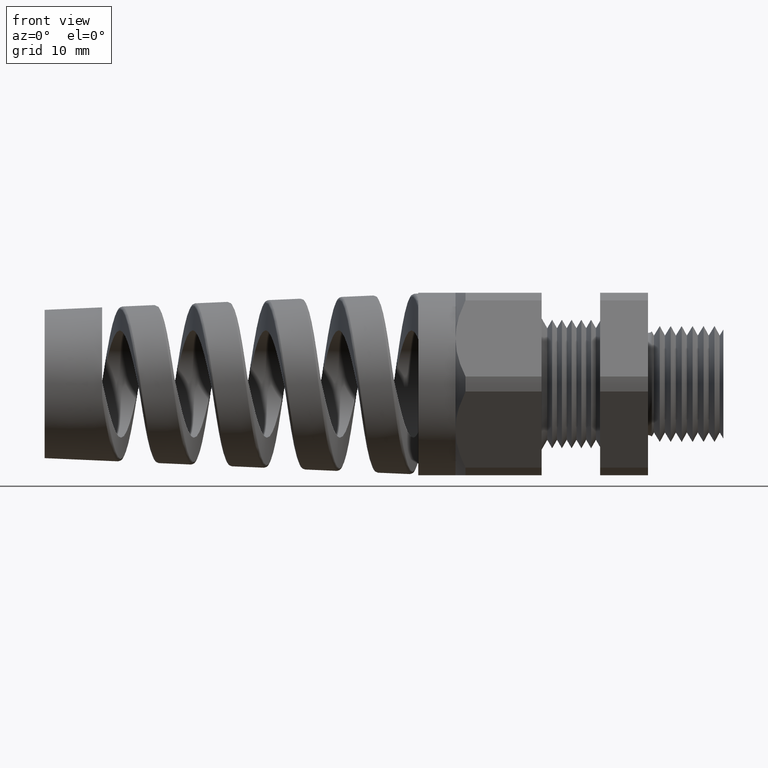
[diagram: clean part render]
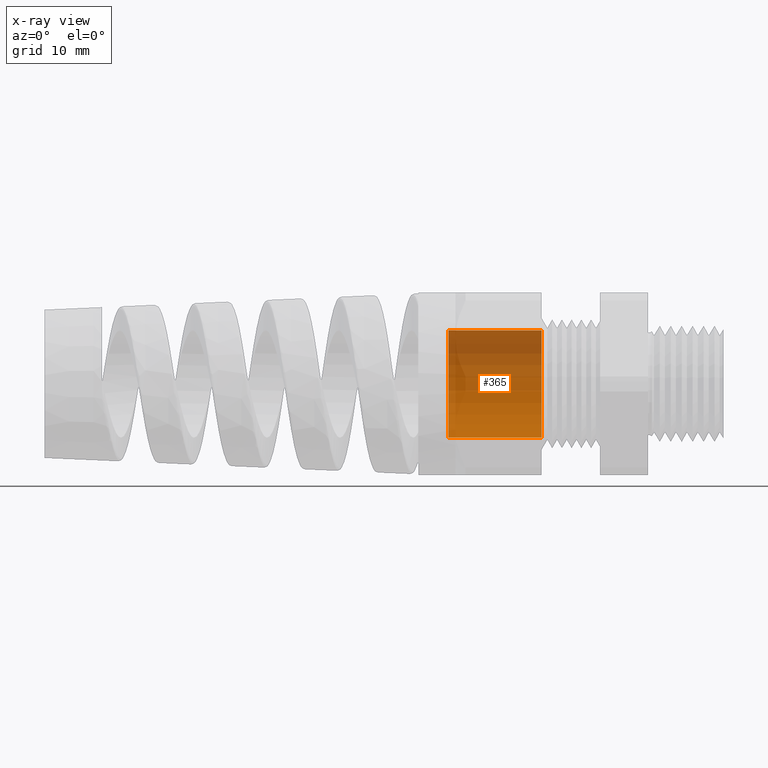
[diagram: x-ray — body ghosted, one internal face saturated and labeled with its STEP entity id]
A machine part, front view, then the same camera in x-ray: the body is ghosted and one INTERNAL B-rep face — a face not visible from any outside direction — is saturated and labeled: STEP entity #365.
In plain terms, the highlighted cylindrical surface (partial cylindrical patch) has radius 5.6007 mm, axis along (1, 0, 0).
Its self-contained STEP definition (entity closure, byte-faithful):
#365 = ADVANCED_FACE ( 'NONE', ( #1284 ), #1283, .T. ) ;
#404 = ORIENTED_EDGE ( 'NONE', *, *, #475, .T. ) ;
#405 = ORIENTED_EDGE ( 'NONE', *, *, #407, .T. ) ;
#407 = EDGE_CURVE ( 'NONE', #425, #408, #1348, .T. ) ;
#408 = VERTEX_POINT ( 'NONE', #1344 ) ;
#409 = ORIENTED_EDGE ( 'NONE', *, *, #410, .F. ) ;
#410 = EDGE_CURVE ( 'NONE', #411, #408, #1343, .T. ) ;
#411 = VERTEX_POINT ( 'NONE', #1399 ) ;
#412 = ORIENTED_EDGE ( 'NONE', *, *, #413, .F. ) ;
#413 = EDGE_CURVE ( 'NONE', #476, #411, #1398, .T. ) ;
#425 = VERTEX_POINT ( 'NONE', #1371 ) ;
#475 = EDGE_CURVE ( 'NONE', #476, #425, #1486, .T. ) ;
#476 = VERTEX_POINT ( 'NONE', #1481 ) ;
#477 = EDGE_LOOP ( 'NONE', ( #404, #405, #409, #412 ) ) ;
#1279 = DIRECTION ( 'NONE',  ( 0.0000000000000000000, 0.0000000000000000000, -1.000000000000000000 ) ) ;
#1280 = DIRECTION ( 'NONE',  ( 1.000000000000000000, 0.0000000000000000000, 0.0000000000000000000 ) ) ;
#1281 = CARTESIAN_POINT ( 'NONE',  ( 0.0000000000000000000, 0.0000000000000000000, 0.0000000000000000000 ) ) ;
#1282 = AXIS2_PLACEMENT_3D ( 'NONE', #1281, #1280, #1279 ) ;
#1283 = CYLINDRICAL_SURFACE ( 'NONE', #1282, 0.2205000000000000000 ) ;
#1284 = FACE_OUTER_BOUND ( 'NONE', #477, .T. ) ;
#1342 = AXIS2_PLACEMENT_3D ( 'NONE', #1402, #1401, #1400 ) ;
#1343 = CIRCLE ( 'NONE', #1342, 0.2205000000000000000 ) ;
#1344 = CARTESIAN_POINT ( 'NONE',  ( -0.7469291338582678700, 2.700346192119914000E-017, 0.2205000000000000000 ) ) ;
#1345 = DIRECTION ( 'NONE',  ( 1.000000000000000000, 0.0000000000000000000, 0.0000000000000000000 ) ) ;
#1346 = VECTOR ( 'NONE', #1345, 39.37007874015748100 ) ;
#1347 = CARTESIAN_POINT ( 'NONE',  ( 0.0000000000000000000, 2.700346192119914000E-017, 0.2205000000000000000 ) ) ;
#1348 = LINE ( 'NONE', #1347, #1346 ) ;
#1371 = CARTESIAN_POINT ( 'NONE',  ( -1.129999999999999900, 2.700346192119914000E-017, 0.2205000000000000000 ) ) ;
#1395 = DIRECTION ( 'NONE',  ( 1.000000000000000000, 0.0000000000000000000, 0.0000000000000000000 ) ) ;
#1396 = VECTOR ( 'NONE', #1395, 39.37007874015748100 ) ;
#1397 = CARTESIAN_POINT ( 'NONE',  ( 0.0000000000000000000, 0.0000000000000000000, -0.2205000000000000000 ) ) ;
#1398 = LINE ( 'NONE', #1397, #1396 ) ;
#1399 = CARTESIAN_POINT ( 'NONE',  ( -0.7469291338582678700, 0.0000000000000000000, -0.2205000000000000000 ) ) ;
#1400 = DIRECTION ( 'NONE',  ( 0.0000000000000000000, 0.0000000000000000000, -1.000000000000000000 ) ) ;
#1401 = DIRECTION ( 'NONE',  ( 1.000000000000000000, 0.0000000000000000000, 0.0000000000000000000 ) ) ;
#1402 = CARTESIAN_POINT ( 'NONE',  ( -0.7469291338582678700, 0.0000000000000000000, 0.0000000000000000000 ) ) ;
#1481 = CARTESIAN_POINT ( 'NONE',  ( -1.129999999999999900, 0.0000000000000000000, -0.2205000000000000000 ) ) ;
#1482 = DIRECTION ( 'NONE',  ( 0.0000000000000000000, 0.0000000000000000000, -1.000000000000000000 ) ) ;
#1483 = DIRECTION ( 'NONE',  ( 1.000000000000000000, 0.0000000000000000000, 0.0000000000000000000 ) ) ;
#1484 = CARTESIAN_POINT ( 'NONE',  ( -1.129999999999999900, 0.0000000000000000000, 0.0000000000000000000 ) ) ;
#1485 = AXIS2_PLACEMENT_3D ( 'NONE', #1484, #1483, #1482 ) ;
#1486 = CIRCLE ( 'NONE', #1485, 0.2205000000000000000 ) ;